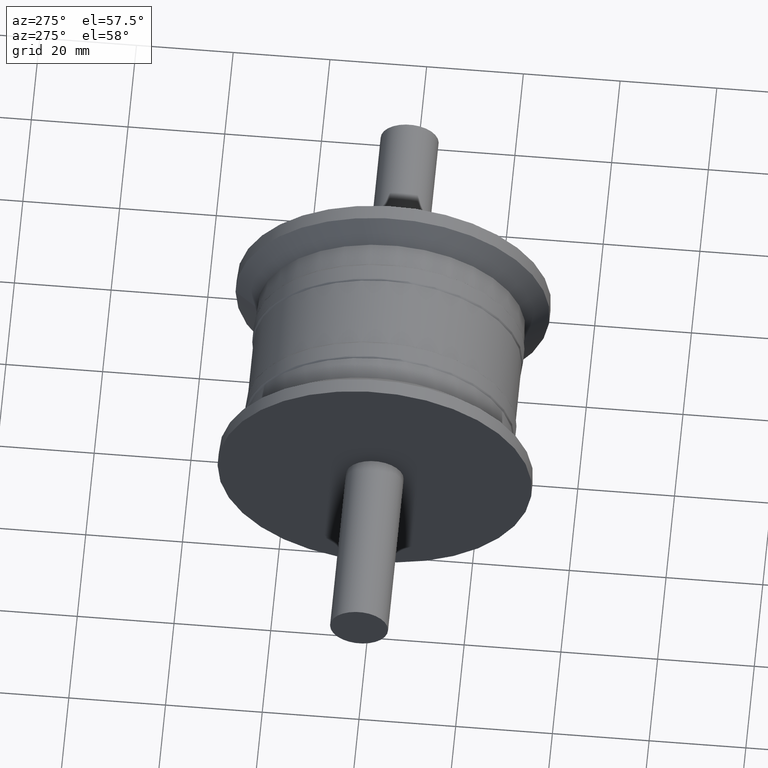
[diagram: clean part render]
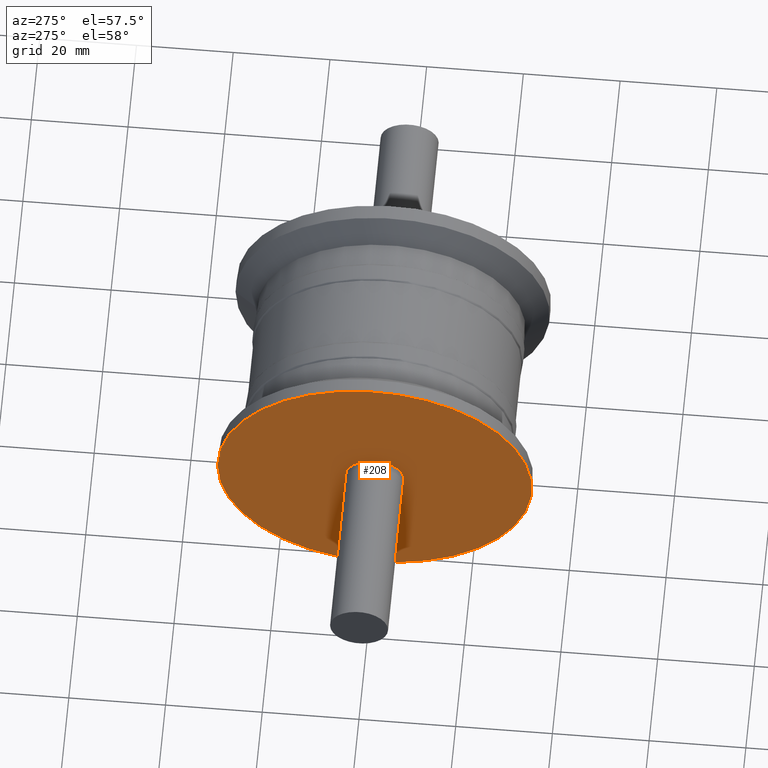
[diagram: same view with one face highlighted and labeled with its STEP entity id]
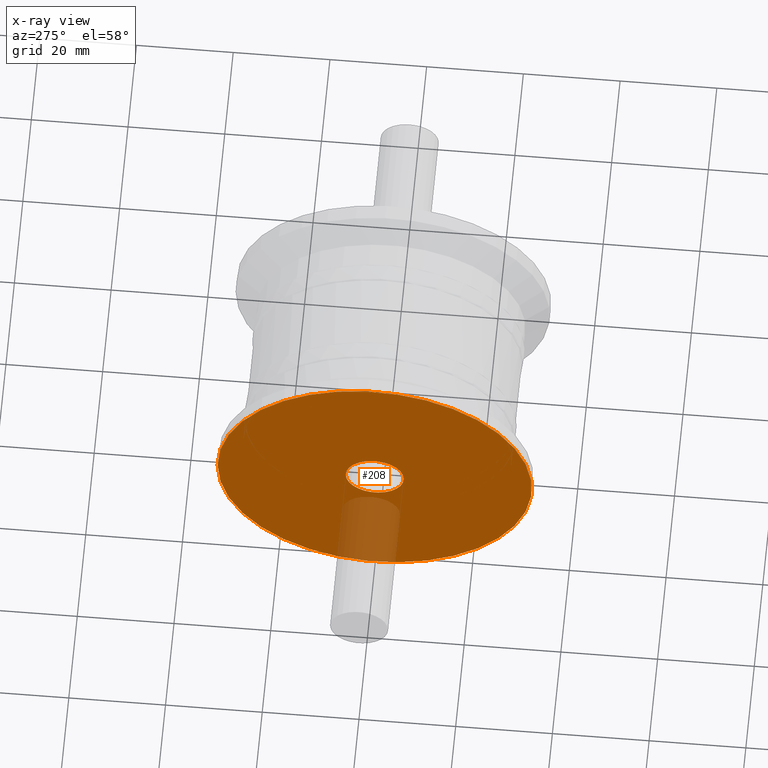
[diagram: x-ray of the same camera — body ghosted, the highlighted face saturated]
A machine part, auxiliary view. The second image highlights one B-rep face of the part: STEP entity #208.
The next image is the same camera in x-ray: the body ghosted, the highlighted face saturated — about 9% of this face is hidden behind the body in this view.
In plain terms, the highlighted planar face has unit normal (-1, -0, 0).
Its self-contained STEP definition (entity closure, byte-faithful):
#19=PLANE('',#242);
#41=FACE_BOUND('',#90,.T.);
#59=FACE_OUTER_BOUND('',#89,.T.);
#89=EDGE_LOOP('',(#179));
#90=EDGE_LOOP('',(#180));
#115=CIRCLE('',#243,32.5);
#116=CIRCLE('',#244,6.00000000000001);
#133=VERTEX_POINT('',#370);
#134=VERTEX_POINT('',#372);
#151=EDGE_CURVE('',#133,#133,#115,.T.);
#152=EDGE_CURVE('',#134,#134,#116,.T.);
#179=ORIENTED_EDGE('',*,*,#151,.F.);
#180=ORIENTED_EDGE('',*,*,#152,.T.);
#208=ADVANCED_FACE('',(#59,#41),#19,.T.);
#242=AXIS2_PLACEMENT_3D('',#369,#306,#307);
#243=AXIS2_PLACEMENT_3D('',#371,#308,#309);
#244=AXIS2_PLACEMENT_3D('',#373,#310,#311);
#306=DIRECTION('center_axis',(-1.,-3.16459002187477E-16,0.));
#307=DIRECTION('ref_axis',(0.,0.,1.));
#308=DIRECTION('center_axis',(1.,3.16459002187477E-16,0.));
#309=DIRECTION('ref_axis',(0.,0.,-1.));
#310=DIRECTION('center_axis',(1.,3.16459002187477E-16,0.));
#311=DIRECTION('ref_axis',(0.,0.,-1.));
#369=CARTESIAN_POINT('Origin',(-22.75,32.5,0.));
#370=CARTESIAN_POINT('',(-22.75,32.5,0.));
#371=CARTESIAN_POINT('Origin',(-22.75,-7.19944229976511E-15,0.));
#372=CARTESIAN_POINT('',(-22.75,6.,0.));
#373=CARTESIAN_POINT('Origin',(-22.75,-7.19944229976511E-15,0.));